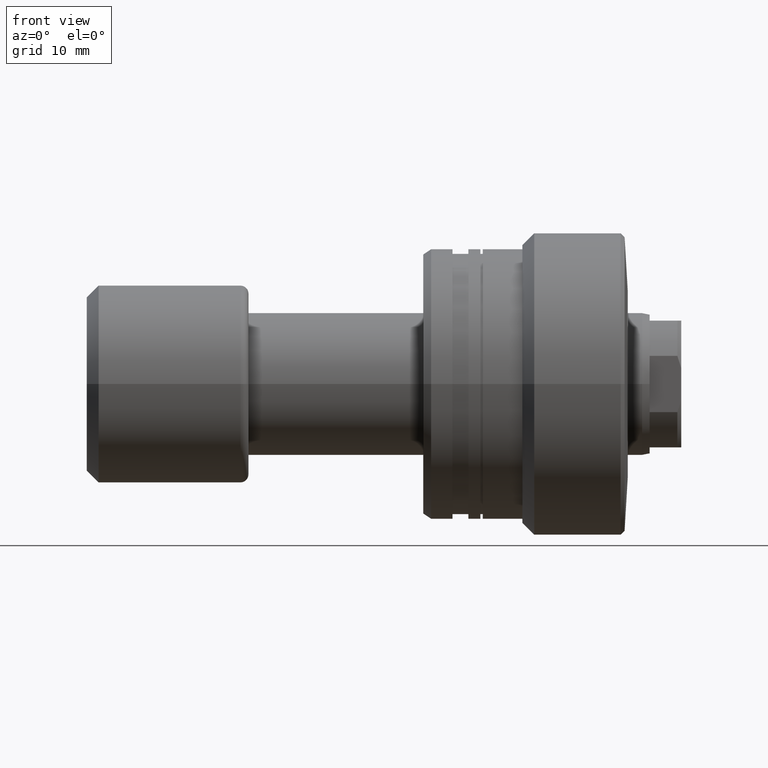
[diagram: clean part render]
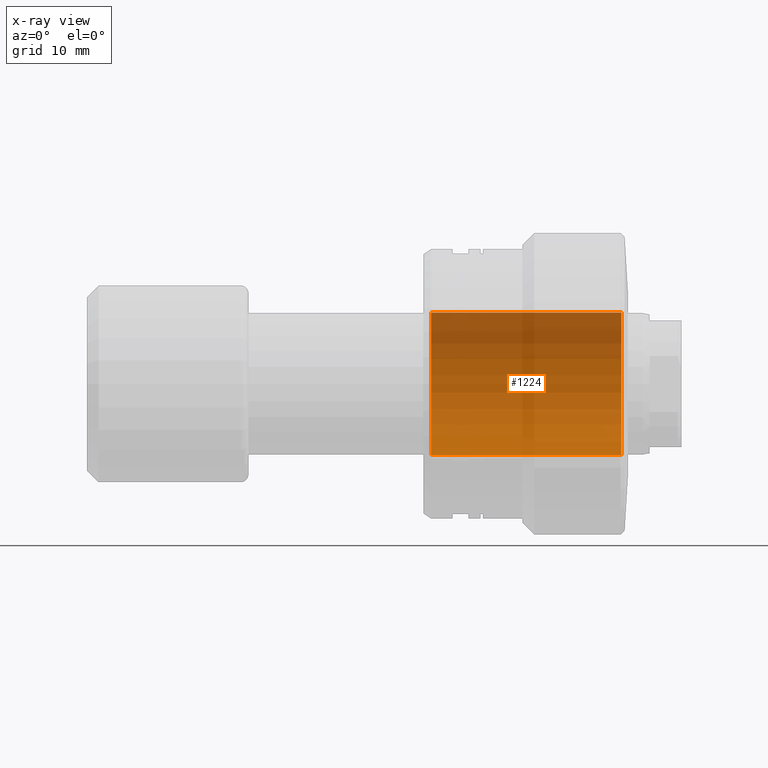
[diagram: x-ray — body ghosted, one internal face saturated and labeled with its STEP entity id]
A machine part, front view, then the same camera in x-ray: the body is ghosted and one INTERNAL B-rep face — a face not visible from any outside direction — is saturated and labeled: STEP entity #1224.
In plain terms, the highlighted cylindrical surface (partial cylindrical patch) has radius 9 mm, axis along (1, 0, 0).
Its self-contained STEP definition (entity closure, byte-faithful):
#5 = VECTOR ( 'NONE', #537, 1000.000000000000000 ) ;
#79 = CARTESIAN_POINT ( 'NONE',  ( -25.50000000000003197, 1.102182119232617517E-15, 9.000000000000000000 ) ) ;
#90 = VECTOR ( 'NONE', #436, 1000.000000000000000 ) ;
#187 = VERTEX_POINT ( 'NONE', #934 ) ;
#230 = VERTEX_POINT ( 'NONE', #79 ) ;
#368 = CARTESIAN_POINT ( 'NONE',  ( -1.500000000000000000, 0.000000000000000000, -9.000000000000000000 ) ) ;
#392 = VERTEX_POINT ( 'NONE', #368 ) ;
#436 = DIRECTION ( 'NONE',  ( 1.000000000000000000, -0.000000000000000000, -0.000000000000000000 ) ) ;
#437 = EDGE_LOOP ( 'NONE', ( #2430, #2346, #1478, #835 ) ) ;
#501 = CARTESIAN_POINT ( 'NONE',  ( -51.95584412271570329, 0.000000000000000000, -9.000000000000000000 ) ) ;
#527 = EDGE_CURVE ( 'NONE', #230, #1805, #1515, .T. ) ;
#537 = DIRECTION ( 'NONE',  ( 1.000000000000000000, -0.000000000000000000, -0.000000000000000000 ) ) ;
#642 = DIRECTION ( 'NONE',  ( 0.000000000000000000, 0.000000000000000000, -1.000000000000000000 ) ) ;
#679 = EDGE_CURVE ( 'NONE', #230, #187, #686, .T. ) ;
#686 = CIRCLE ( 'NONE', #1712, 9.000000000000000000 ) ;
#694 = CARTESIAN_POINT ( 'NONE',  ( -1.500000000000000000, 1.102182119232617517E-15, 9.000000000000000000 ) ) ;
#756 = EDGE_CURVE ( 'NONE', #392, #1805, #1153, .T. ) ;
#764 = AXIS2_PLACEMENT_3D ( 'NONE', #1574, #1960, #642 ) ;
#835 = ORIENTED_EDGE ( 'NONE', *, *, #756, .T. ) ;
#866 = CARTESIAN_POINT ( 'NONE',  ( -1.500000000000000000, 0.000000000000000000, 0.000000000000000000 ) ) ;
#934 = CARTESIAN_POINT ( 'NONE',  ( -25.50000000000003197, 0.000000000000000000, -9.000000000000000000 ) ) ;
#993 = FACE_OUTER_BOUND ( 'NONE', #437, .T. ) ;
#1019 = DIRECTION ( 'NONE',  ( 1.000000000000000000, 0.000000000000000000, 0.000000000000000000 ) ) ;
#1053 = CARTESIAN_POINT ( 'NONE',  ( -25.50000000000003197, 0.000000000000000000, 0.000000000000000000 ) ) ;
#1153 = CIRCLE ( 'NONE', #1704, 9.000000000000000000 ) ;
#1212 = CYLINDRICAL_SURFACE ( 'NONE', #764, 9.000000000000000000 ) ;
#1224 = ADVANCED_FACE ( 'NONE', ( #993 ), #1212, .F. ) ;
#1367 = EDGE_CURVE ( 'NONE', #187, #392, #1472, .T. ) ;
#1472 = LINE ( 'NONE', #501, #5 ) ;
#1478 = ORIENTED_EDGE ( 'NONE', *, *, #1367, .T. ) ;
#1515 = LINE ( 'NONE', #2279, #90 ) ;
#1574 = CARTESIAN_POINT ( 'NONE',  ( -51.95584412271570329, 0.000000000000000000, 0.000000000000000000 ) ) ;
#1617 = DIRECTION ( 'NONE',  ( 0.000000000000000000, 0.000000000000000000, -1.000000000000000000 ) ) ;
#1704 = AXIS2_PLACEMENT_3D ( 'NONE', #866, #1019, #1617 ) ;
#1712 = AXIS2_PLACEMENT_3D ( 'NONE', #1053, #2158, #1780 ) ;
#1780 = DIRECTION ( 'NONE',  ( 0.000000000000000000, 0.000000000000000000, 1.000000000000000000 ) ) ;
#1805 = VERTEX_POINT ( 'NONE', #694 ) ;
#1960 = DIRECTION ( 'NONE',  ( 1.000000000000000000, -0.000000000000000000, -0.000000000000000000 ) ) ;
#2158 = DIRECTION ( 'NONE',  ( -1.000000000000000000, -0.000000000000000000, -0.000000000000000000 ) ) ;
#2279 = CARTESIAN_POINT ( 'NONE',  ( -51.95584412271570329, 1.102182119232617517E-15, 9.000000000000000000 ) ) ;
#2346 = ORIENTED_EDGE ( 'NONE', *, *, #679, .T. ) ;
#2430 = ORIENTED_EDGE ( 'NONE', *, *, #527, .F. ) ;